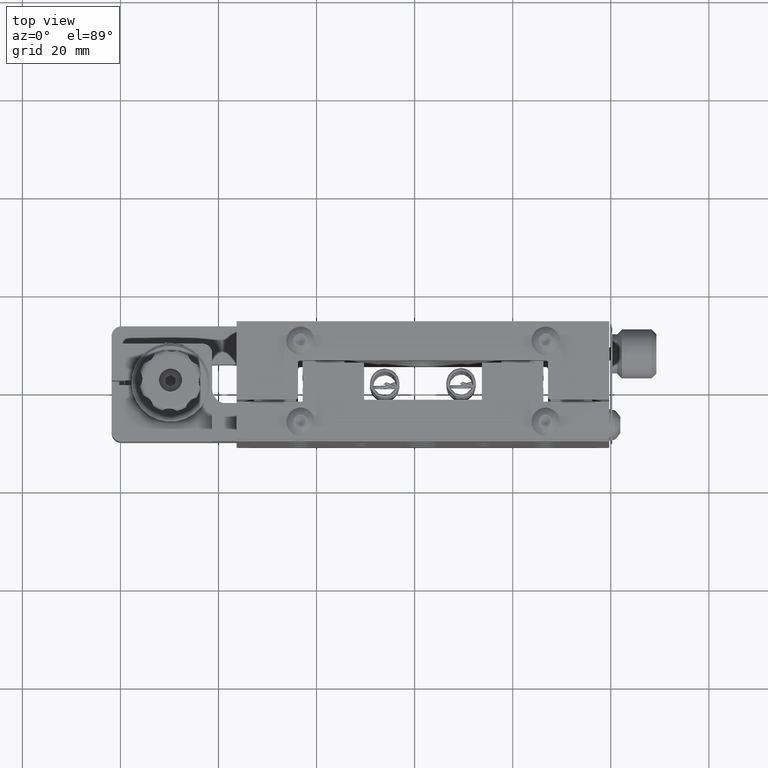
[diagram: clean part render]
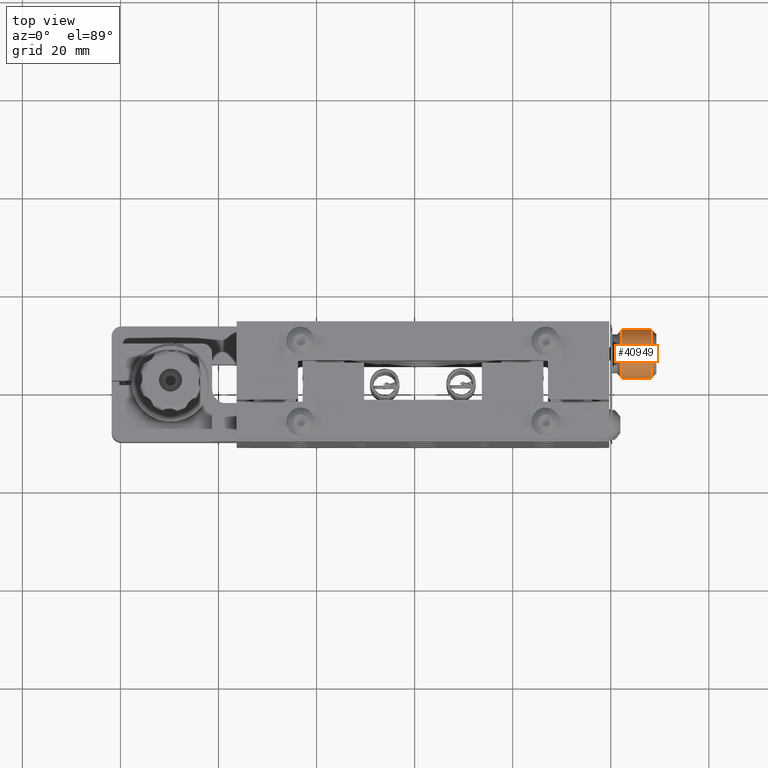
[diagram: same view with one face highlighted and labeled with its STEP entity id]
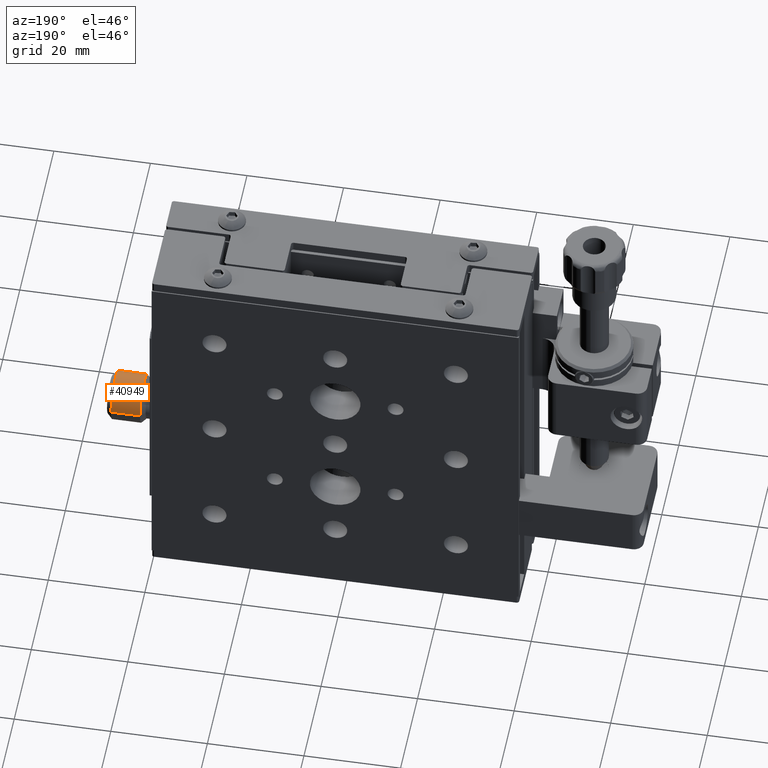
[diagram: same view with one face highlighted and labeled with its STEP entity id]
A machine part, top view. The second image highlights one B-rep face of the part: STEP entity #40949.
A second angle (auxiliary view) of the same face is appended — the face is thin or edge-on in the first view.
In plain terms, the highlighted cylindrical surface (edge-blend (fillet) strip) has radius 5 mm, axis along (-1, -0, 0).
Its self-contained STEP definition (entity closure, byte-faithful):
#678 = CARTESIAN_POINT ( 'NONE',  ( 62.30557582776818000, 7.606442215610064400, 111.1000000000000400 ) ) ;
#1100 = ORIENTED_EDGE ( 'NONE', *, *, #18554, .T. ) ;
#1961 = EDGE_LOOP ( 'NONE', ( #9378, #1100, #52798, #7161 ) ) ;
#2761 = LINE ( 'NONE', #48251, #71392 ) ;
#5414 = DIRECTION ( 'NONE',  ( 1.000000000000000000, 1.086294160770596600E-016, -2.766006031498308100E-016 ) ) ;
#7161 = ORIENTED_EDGE ( 'NONE', *, *, #15739, .F. ) ;
#8592 = CARTESIAN_POINT ( 'NONE',  ( 68.30557582776818000, 12.60644221561006600, 111.1000000000000400 ) ) ;
#9378 = ORIENTED_EDGE ( 'NONE', *, *, #70182, .T. ) ;
#14137 = DIRECTION ( 'NONE',  ( -1.000000000000000000, -1.086294160770596600E-016, 2.766006031498308100E-016 ) ) ;
#15017 = DIRECTION ( 'NONE',  ( -1.000000000000000000, -1.086294160770596600E-016, 2.766006031498308100E-016 ) ) ;
#15739 = EDGE_CURVE ( 'NONE', #57439, #54642, #2761, .T. ) ;
#16786 = CYLINDRICAL_SURFACE ( 'NONE', #64236, 5.000000000000017800 ) ;
#18554 = EDGE_CURVE ( 'NONE', #33134, #25597, #44693, .T. ) ;
#20450 = DIRECTION ( 'NONE',  ( -1.000000000000000000, -1.086294160770596600E-016, 2.766006031498308100E-016 ) ) ;
#25597 = VERTEX_POINT ( 'NONE', #48354 ) ;
#25924 = CARTESIAN_POINT ( 'NONE',  ( 69.30557582776818000, 12.60644221561008200, 111.1000000000000400 ) ) ;
#26243 = CARTESIAN_POINT ( 'NONE',  ( 68.30557582776818000, 7.606442215610065300, 111.1000000000000400 ) ) ;
#29297 = DIRECTION ( 'NONE',  ( 0.0000000000000000000, -1.000000000000000000, 0.0000000000000000000 ) ) ;
#29465 = CARTESIAN_POINT ( 'NONE',  ( 62.30557582776818000, 2.606442215610063100, 111.1000000000000400 ) ) ;
#32178 = DIRECTION ( 'NONE',  ( 0.0000000000000000000, 1.000000000000000000, 0.0000000000000000000 ) ) ;
#33134 = VERTEX_POINT ( 'NONE', #8592 ) ;
#34007 = CARTESIAN_POINT ( 'NONE',  ( 69.30557582776818000, 7.606442215610065300, 111.1000000000000400 ) ) ;
#40949 = ADVANCED_FACE ( 'NONE', ( #49715 ), #16786, .T. ) ;
#44693 = LINE ( 'NONE', #25924, #53674 ) ;
#48251 = CARTESIAN_POINT ( 'NONE',  ( 69.30557582776818000, 2.606442215610047500, 111.1000000000000400 ) ) ;
#48354 = CARTESIAN_POINT ( 'NONE',  ( 62.30557582776818000, 12.60644221561006400, 111.1000000000000400 ) ) ;
#49715 = FACE_OUTER_BOUND ( 'NONE', #1961, .T. ) ;
#51504 = DIRECTION ( 'NONE',  ( 0.0000000000000000000, 1.000000000000000000, 0.0000000000000000000 ) ) ;
#52798 = ORIENTED_EDGE ( 'NONE', *, *, #72594, .T. ) ;
#53674 = VECTOR ( 'NONE', #20450, 1000.000000000000000 ) ;
#54642 = VERTEX_POINT ( 'NONE', #29465 ) ;
#56672 = CIRCLE ( 'NONE', #72530, 5.000000000000016900 ) ;
#57439 = VERTEX_POINT ( 'NONE', #57860 ) ;
#57683 = DIRECTION ( 'NONE',  ( -1.000000000000000000, -1.086294160770596600E-016, 2.766006031498308100E-016 ) ) ;
#57860 = CARTESIAN_POINT ( 'NONE',  ( 68.30557582776818000, 2.606442215610064000, 111.1000000000000400 ) ) ;
#64236 = AXIS2_PLACEMENT_3D ( 'NONE', #34007, #57683, #29297 ) ;
#67176 = AXIS2_PLACEMENT_3D ( 'NONE', #26243, #15017, #32178 ) ;
#67631 = CIRCLE ( 'NONE', #67176, 5.000000000000017800 ) ;
#70182 = EDGE_CURVE ( 'NONE', #57439, #33134, #67631, .T. ) ;
#71392 = VECTOR ( 'NONE', #14137, 1000.000000000000000 ) ;
#72530 = AXIS2_PLACEMENT_3D ( 'NONE', #678, #5414, #51504 ) ;
#72594 = EDGE_CURVE ( 'NONE', #25597, #54642, #56672, .T. ) ;